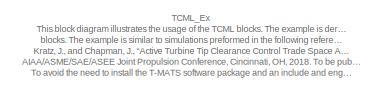
[diagram: root canvas - part 1/2, top left region]
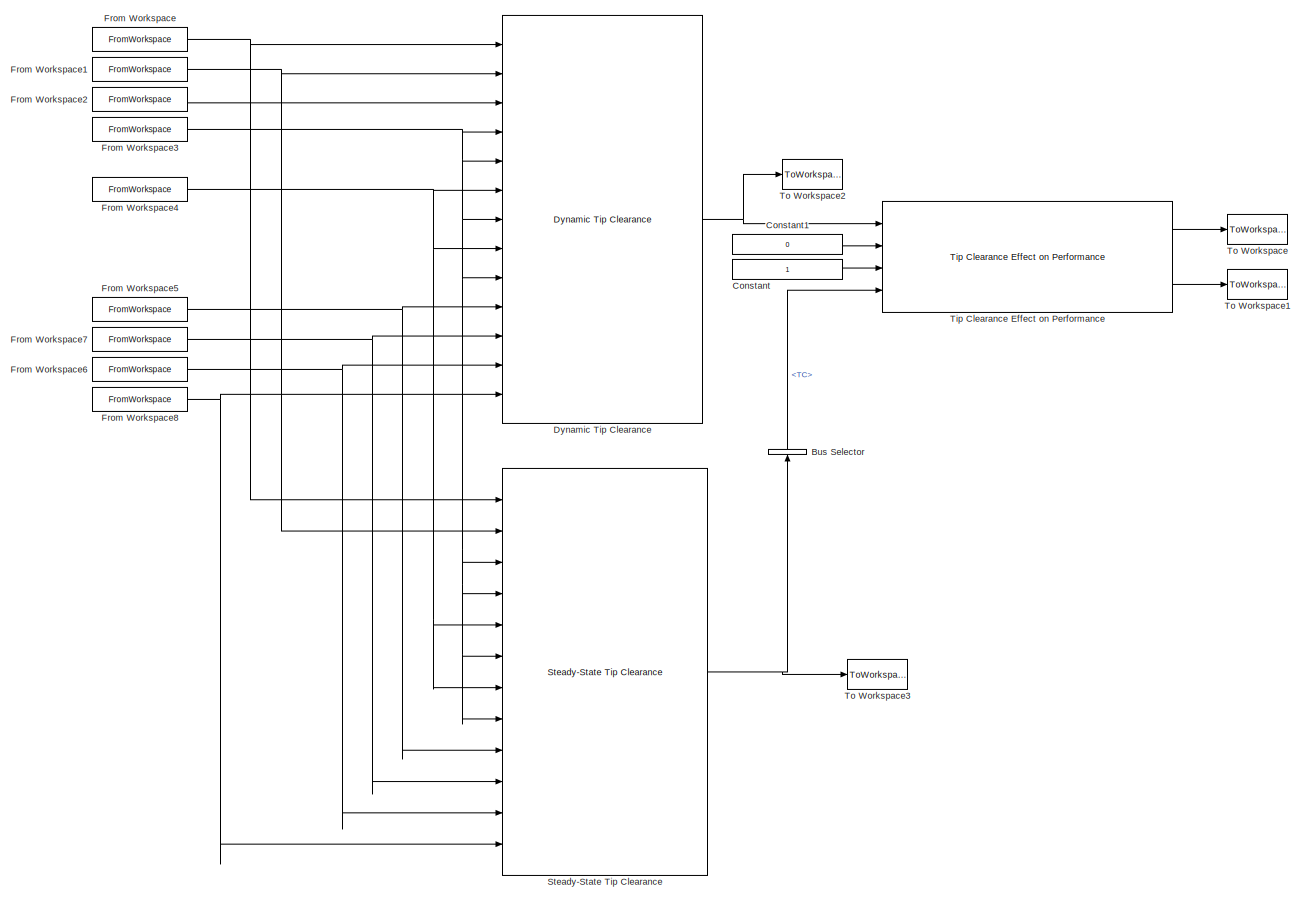
[diagram: root canvas - part 2/2, full width, middle band]
MODEL slx_3a5f094082b6
KIND model
CONFIG AbsTol = auto
CONFIG FixedStep = MWS.TC.Ext.dt
CONFIG MaxStep = auto
CONFIG MinStep = auto
CONFIG RelTol = 1e-3
CONFIG SampleTimeConstraint = Unconstrained
CONFIG Solver = ode4
CONFIG SolverMode = Auto
CONFIG SolverName = ode4
CONFIG StartTime = 0.0
CONFIG StopTime = tsim
BLOCK [BusSelector] Bus Selector
  OutputSignals = TC
  Ports = [1, 1]
BLOCK [Constant] Constant
BLOCK [Constant] Constant1
  Value = 0
BLOCK [Reference] Dynamic Tip Clearance  REF=lib_TCML/Dynamic Tip Clearance
  A_Blade_M = MWS.TC.Blade.A
  Cp_Blade_Data_M = MWS.TC.Blade.Cp_Data
  Cp_Blade_M = 4.5
  Cp_Case_Data_M = MWS.TC.Case.Cp_Data
  Cp_Case_M = 4.5
  Cp_Rotor_Data_M = MWS.TC.Rotor.Cp_Data
  Cp_Rotor_M = 4.5
  Cp_TempDependence_Blade_M = on
  Cp_TempDependence_Case_M = on
  Cp_TempDependence_Rotor_M = on
  E_Blade_Data_M = MWS.TC.Blade.E_Data
  E_Blade_M = 3974400000
  E_Rotor_Data_M = MWS.TC.Rotor.E_Data
  E_Rotor_M = 3974400000
  E_TempDependence_Blade_M = on
  E_TempDependence_Rotor_M = on
  L_Blade_M = MWS.TC.Blade.L0
  L_Shroud_M = MWS.TC.L_Shroud
  Ports = [13, 1]
  Ri_Case_M = MWS.TC.Case.Ri
  Ro_Rotor_M = MWS.TC.Rotor.Ro
  SourceBlock = lib_TCML/Dynamic Tip Clearance
  SourceType = TCML - Dynamic Tip Clearance Library Block
  T0_Blade_M = MWS.TC.Blade.T0
  T0_Case_M = MWS.TC.Case.T0
  T0_Core_M = MWS.TC.FC.T0_Core
  T0_Rotor_M = MWS.TC.Rotor.T0
  TCp_Blade_Data_M = MWS.TC.Blade.TCp_Data
  TCp_Case_Data_M = MWS.TC.Case.TCp_Data
  TCp_Rotor_Data_M = MWS.TC.Rotor.TCp_Data
  TE_Blade_Data_M = MWS.TC.Blade.TE_Data
  TE_Rotor_Data_M = MWS.TC.Rotor.TE_Data
  Talpha_Blade_Data_M = MWS.TC.Blade.Talpha_Data
  Talpha_Case_Data_M = MWS.TC.Case.Talpha_Data
  Talpha_Rotor_Data_M = MWS.TC.Rotor.Talpha_Data
  Tc_Blade_Data_M = [0 10]
  Tc_Case_In_Data_M = [0 10]
  Tc_Case_Out_Data_M = [0 10]
  Tc_Rotor_Back_Data_M = [0 10]
  Tc_Rotor_Front_Data_M = [0 10]
  Tcool0_Blade_M = MWS.TC.FC.Tcool0_Blade
  Tcool0_Case_In_M = MWS.TC.FC.Tcool0_Case_In
  Tcool0_Case_Out_M = MWS.TC.FC.Tcool0_Case_Out
  Tcool0_Rotor_Back_M = MWS.TC.FC.Tcool0_Rotor_Back
  Tcool0_Rotor_Front_M = MWS.TC.FC.Tcool0_Rotor_Front
  Tdes_Blade_M = MWS.TC.Blade.Tdes
  Tdes_Case_In_M = MWS.TC.Case.Tdes_in
  Tdes_Case_Out_M = MWS.TC.Case.Tdes_out
  Tdes_Rotor_Back_M = MWS.TC.Rotor.Tdes_back
  Tdes_Rotor_Front_M = MWS.TC.Rotor.Tdes_front
  Tk_Case_Data_M = MWS.TC.Case.Tk_Data
  Tk_Rotor_Data_M = MWS.TC.Rotor.Tk_Data
  Tv_Rotor_Data_M = MWS.TC.Rotor.Tv_Data
  W0_Core_M = MWS.TC.FC.W0_Core
  W_Case_M = MWS.TC.Case.W
  W_Rotor_M = MWS.TC.Rotor.W
  Wc_Blade_Data_M = [0 100]
  Wc_Case_In_Data_M = [0 100]
  Wc_Case_Out_Data_M = [0 100]
  Wc_Rotor_Back_Data_M = [0 100]
  Wc_Rotor_Front_Data_M = [0 100]
  Wcool0_Case_In_M = MWS.TC.FC.Wcool0_Case_In
  Wcool0_Case_Out_M = MWS.TC.FC.Wcool0_Case_Out
  Wcool0_Case_Out_Nom_M = MWS.TC.FC.Wcool0_Case_Out_Nom
  Wcool0_Rotor_Back_M = MWS.TC.FC.Wcool0_Rotor_Back
  Wcool0_Rotor_Front_M = MWS.TC.FC.Wcool0_Rotor_Front
  Wdes_Blade_M = MWS.TC.Blade.Wdes
  Wdes_Case_In_M = MWS.TC.Case.Wdes_in
  Wdes_Case_Out_M = MWS.TC.Case.Wdes_out
  Wdes_Rotor_Back_M = MWS.TC.Rotor.Wdes_back
  Wdes_Rotor_Front_M = MWS.TC.Rotor.Wdes_front
  alpha_Blade_Data_M = MWS.TC.Blade.alpha_Data
  alpha_Blade_M = 0.000008
  alpha_Case_Data_M = MWS.TC.Case.alpha_Data
  alpha_Case_M = 0.000008
  alpha_Rotor_Data_M = MWS.TC.Rotor.alpha_Data
  alpha_Rotor_M = 0.000008
  alpha_TempDependence_Blade_M = on
  alpha_TempDependence_Case_M = on
  alpha_TempDependence_Rotor_M = on
  dt_Blade_M = MWS.TC.Blade.dt
  dt_Case_M = MWS.TC.Case.dt
  dt_M = MWS.TC.Ext.dt
  dt_Rotor_M = MWS.TC.Rotor.dt
  eta_Blade_M = MWS.TC.Blade.eta
  h_Blade_Data_M = [0.03 0.03; 0.03 0.03]
  h_Blade_M = 0.03
  h_Case_In_Data_M = [0.004 0.004; 0.004 0.004]
  h_Case_In_M = 0.004
  h_Case_Out_Data_M = [0.003 0.003; 0.003 0.003]
  h_Case_Out_M = 0.004
  h_Const_Blade_M = off
  h_Const_Case_In_M = off
  h_Const_Case_Out_M = off
  h_Const_Rotor_Back_M = off
  h_Const_Rotor_Front_M = off
  h_Data_Blade_M = off
  h_Data_Case_In_M = off
  h_Data_Case_Out_M = off
  h_Data_Rotor_Back_M = off
  h_Data_Rotor_Front_M = off
  h_Eqn_Blade_M = on
  h_Eqn_Case_In_M = on
  h_Eqn_Case_Out_M = on
  h_Eqn_Rotor_Back_M = on
  h_Eqn_Rotor_Front_M = on
  h_Rotor_Back_Data_M = [0.003 0.003; 0.003 0.003]
  h_Rotor_Back_M = 0.03
  h_Rotor_Front_Data_M = [0.003 0.003; 0.003 0.003]
  h_Rotor_Front_M = 0.03
  hcoeff_Blade_M = MWS.TC.Blade.hcoeff
  hcoeff_Case_In_M = MWS.TC.Case.hcoeff_in
  hcoeff_Case_Out_M = MWS.TC.Case.hcoeff_out
  hcoeff_Rotor_Back_M = MWS.TC.Rotor.hcoeff_back
  hcoeff_Rotor_Front_M = MWS.TC.Rotor.hcoeff_front
  k_Case_Data_M = MWS.TC.Case.k_Data
  k_Case_M = 0.0015
  k_Rotor_Data_M = MWS.TC.Rotor.k_Data
  k_Rotor_M = 0.0015
  k_TempDependence_Case_M = on
  k_TempDependence_Rotor_M = on
  m_Blade_M = MWS.TC.Blade.m
  n_Case_M = MWS.TC.Case.n
  n_Rotor_M = MWS.TC.Rotor.n
  rho_Blade_M = MWS.TC.Blade.rho
  rho_Case_M = MWS.TC.Case.rho
  rho_Rotor_M = MWS.TC.Rotor.rho
  v_Rotor_Data_M = MWS.TC.Rotor.v_Data
  v_Rotor_M = 0.3
  v_TempDependence_Rotor_M = on
BLOCK [FromWorkspace] From Workspace
  SampleTime = 0
  VariableName = Nmech
  ZeroCross = on
BLOCK [FromWorkspace] From Workspace1
  SampleTime = 0
  VariableName = T4
  ZeroCross = on
BLOCK [FromWorkspace] From Workspace2
  SampleTime = 0
  VariableName = W4
  ZeroCross = on
BLOCK [FromWorkspace] From Workspace3
  SampleTime = 0
  VariableName = T3
  ZeroCross = on
BLOCK [FromWorkspace] From Workspace4
  SampleTime = 0
  VariableName = Wrot
  ZeroCross = on
BLOCK [FromWorkspace] From Workspace5
  SampleTime = 0
  VariableName = Wcase_in
  ZeroCross = on
BLOCK [FromWorkspace] From Workspace6
  SampleTime = 0
  VariableName = Wcase_out
  ZeroCross = on
BLOCK [FromWorkspace] From Workspace7
  SampleTime = 0
  VariableName = T13
  ZeroCross = on
BLOCK [FromWorkspace] From Workspace8
  SampleTime = 0
  VariableName = Wcase_out_nom
  ZeroCross = on
BLOCK [Reference] Steady-State Tip Clearance  REF=lib_TCML/Steady-State Tip Clearance
  E_Blade_Data_M = MWS.TC.Blade.E_Data
  E_Blade_M = 3974400000
  E_Rotor_Data_M = MWS.TC.Rotor.E_Data
  E_Rotor_M = 3974400000
  E_TempDependence_Blade_M = on
  E_TempDependence_Rotor_M = on
  L_Blade_M = MWS.TC.Blade.L0
  L_Shroud_M = MWS.TC.L_Shroud
  Ports = [12, 1]
  Ri_Case_M = MWS.TC.Case.Ri
  Ro_Rotor_M = MWS.TC.Rotor.Ro
  SourceBlock = lib_TCML/Steady-State Tip Clearance
  SourceType = TCML - Steady-State Tip Clearance Library Block
  T0_Blade_M = MWS.TC.Blade.T0
  T0_Case_M = MWS.TC.Case.T0
  T0_Rotor_M = MWS.TC.Rotor.T0
  TE_Blade_Data_M = MWS.TC.Blade.TE_Data
  TE_Rotor_Data_M = MWS.TC.Rotor.TE_Data
  Talpha_Blade_Data_M = MWS.TC.Blade.Talpha_Data
  Talpha_Case_Data_M = MWS.TC.Case.Talpha_Data
  Talpha_Rotor_Data_M = MWS.TC.Rotor.Talpha_Data
  Tc_Blade_Data_M = [0 10]
  Tc_Case_In_Data_M = [1 10]
  Tc_Case_Out_Data_M = [0 10]
  Tc_Rotor_Back_Data_M = [0 10]
  Tc_Rotor_Front_Data_M = [0 10]
  Tdes_Blade_M = MWS.TC.Blade.Tdes
  Tdes_Case_In_M = MWS.TC.Case.Tdes_in
  Tdes_Case_Out_M = MWS.TC.Case.Tdes_out
  Tdes_Rotor_Back_M = MWS.TC.Rotor.Tdes_back
  Tdes_Rotor_Front_M = MWS.TC.Rotor.Tdes_front
  Tk_Case_Data_M = MWS.TC.Case.Tk_Data
  Tk_Rotor_Data_M = MWS.TC.Rotor.Tk_Data
  Tv_Rotor_Data_M = MWS.TC.Rotor.Tv_Data
  W_Case_M = MWS.TC.Case.W
  W_Rotor_M = MWS.TC.Rotor.W
  Wc_Blade_Data_M = [0 100]
  Wc_Case_In_Data_M = [0 100]
  Wc_Case_Out_Data_M = [0 100]
  Wc_Rotor_Back_Data_M = [0 100]
  Wc_Rotor_Front_Data_M = [0 100]
  Wdes_Blade_M = MWS.TC.Blade.Wdes
  Wdes_Case_In_M = MWS.TC.Case.Wdes_in
  Wdes_Case_Out_M = MWS.TC.Case.Wdes_out
  Wdes_Rotor_Back_M = MWS.TC.Rotor.Wdes_back
  Wdes_Rotor_Front_M = MWS.TC.Rotor.Wdes_front
  alpha_Blade_Data_M = MWS.TC.Blade.alpha_Data
  alpha_Blade_M = 0.000008
  alpha_Case_Data_M = MWS.TC.Case.alpha_Data
  alpha_Case_M = 0.000008
  alpha_Rotor_Data_M = MWS.TC.Rotor.alpha_Data
  alpha_Rotor_M = 0.000008
  alpha_TempDependence_Blade_M = on
  alpha_TempDependence_Case_M = on
  alpha_TempDependence_Rotor_M = on
  eta_Blade_M = MWS.TC.Blade.eta
  h_Blade_Data_M = [0.03 0.03; 0.03 0.03]
  h_Blade_M = 0.03
  h_Case_In_Data_M = [0.02 0.02; 0.02 0.02]
  h_Case_In_M = 0.02
  h_Case_Out_Data_M = [0.01 0.01; 0.01 0.01]
  h_Case_Out_M = 0.01
  h_Const_Blade_M = off
  h_Const_Case_In_M = off
  h_Const_Case_Out_M = off
  h_Const_Rotor_Back_M = off
  h_Const_Rotor_Front_M = off
  h_Data_Blade_M = off
  h_Data_Case_In_M = off
  h_Data_Case_Out_M = off
  h_Data_Rotor_Back_M = off
  h_Data_Rotor_Front_M = off
  h_Eqn_Blade_M = on
  h_Eqn_Case_In_M = on
  h_Eqn_Case_Out_M = on
  h_Eqn_Rotor_Back_M = on
  h_Eqn_Rotor_Front_M = on
  h_Rotor_Back_Data_M = [0.003 0.003; 0.003 0.003]
  h_Rotor_Back_M = 0.03
  h_Rotor_Front_Data_M = [0.003 0.003; 0.003 0.003]
  h_Rotor_Front_M = 0.03
  hcoeff_Blade_M = MWS.TC.Blade.hcoeff
  hcoeff_Case_In_M = MWS.TC.Case.hcoeff_in
  hcoeff_Case_Out_M = MWS.TC.Case.hcoeff_out
  hcoeff_Rotor_Back_M = MWS.TC.Rotor.hcoeff_back
  hcoeff_Rotor_Front_M = MWS.TC.Rotor.hcoeff_front
  k_Case_Data_M = MWS.TC.Case.k_Data
  k_Case_M = 0.0015
  k_Rotor_Data_M = MWS.TC.Rotor.k_Data
  k_Rotor_M = 0.0015
  k_TempDependence_Case_M = on
  k_TempDependence_Rotor_M = on
  n_Case_M = MWS.TC.Case.n
  n_Rotor_M = MWS.TC.Rotor.n
  rho_Blade_M = MWS.TC.Blade.rho
  rho_Case_M = MWS.TC.Case.rho
  rho_Rotor_M = MWS.TC.Rotor.rho
  v_Rotor_Data_M = MWS.TC.Rotor.v_Data
  v_Rotor_M = 0.3
  v_TempDependence_Rotor_M = on
BLOCK [Reference] Tip Clearance Effect on Performance  REF=lib_TCML/Tip Clearance Effect on Performance
  DegGap_M = MWS.TC.DegGap
  L_Shroud_M = MWS.TC.L_Shroud
  NomConfig_M = on
  Ports = [4, 2]
  SourceBlock = lib_TCML/Tip Clearance Effect on Performance
  SourceType = TCML - Tip Clearance Effect on Performance Library Block
BLOCK [ToWorkspace] To Workspace
  FixptAsFi = on
  MaxDataPoints = inf
  Ports = [1]
  SampleTime = -1
  Save2DSignal = 3-D array (concatenate along third dimension)
  SaveFormat = Timeseries
  VariableName = TCact
BLOCK [ToWorkspace] To Workspace1
  FixptAsFi = on
  MaxDataPoints = inf
  Ports = [1]
  SampleTime = -1
  Save2DSignal = 3-D array (concatenate along third dimension)
  SaveFormat = Timeseries
  VariableName = effmod
BLOCK [ToWorkspace] To Workspace2
  FixptAsFi = on
  MaxDataPoints = inf
  Ports = [1]
  SampleTime = -1
  Save2DSignal = 3-D array (concatenate along third dimension)
  SaveFormat = Timeseries
  VariableName = Out_Dyn
BLOCK [ToWorkspace] To Workspace3
  FixptAsFi = on
  MaxDataPoints = inf
  Ports = [1]
  SampleTime = -1
  Save2DSignal = 3-D array (concatenate along third dimension)
  SaveFormat = Timeseries
  VariableName = Out_SS
ANNOTATION (root): TCML_Ex This block diagram illustrates the usage of the TCML blocks. The example is derived from a simulation of an advnaced geared turbofan engine using these blocks. The example is similar to simulations preformed in the following reference: Kratz, J., and Chapman, J., “Active Turbine Tip Clearance Control Trade Space Analysis of an Advanced Geared Turbofan Engine,” Proceedings of the 54nd AIAA/...<+1700ch>
LINE Bus Selector:1 -> Tip Clearance Effect on Performance:4
LINE Constant1:1 -> Tip Clearance Effect on Performance:2
LINE Constant:1 -> Tip Clearance Effect on Performance:3
NET Dynamic Tip Clearance:1 -> Tip Clearance Effect on Performance:1, To Workspace2:1
NET From Workspace1:1 -> Dynamic Tip Clearance:2, Steady-State Tip Clearance:2
LINE From Workspace2:1 -> Dynamic Tip Clearance:3
NET From Workspace3:1 -> Dynamic Tip Clearance:4, Dynamic Tip Clearance:5, Dynamic Tip Clearance:7, Dynamic Tip Clearance:9, Steady-State Tip Clearance:3, Steady-State Tip Clearance:4, Steady-State Tip Clearance:6, Steady-State Tip Clearance:8
NET From Workspace4:1 -> Dynamic Tip Clearance:6, Dynamic Tip Clearance:8, Steady-State Tip Clearance:5, Steady-State Tip Clearance:7
NET From Workspace5:1 -> Dynamic Tip Clearance:10, Steady-State Tip Clearance:9
NET From Workspace6:1 -> Dynamic Tip Clearance:12, Steady-State Tip Clearance:11
NET From Workspace7:1 -> Dynamic Tip Clearance:11, Steady-State Tip Clearance:10
NET From Workspace8:1 -> Dynamic Tip Clearance:13, Steady-State Tip Clearance:12
NET From Workspace:1 -> Dynamic Tip Clearance:1, Steady-State Tip Clearance:1
NET Steady-State Tip Clearance:1 -> Bus Selector:1, To Workspace3:1
LINE Tip Clearance Effect on Performance:1 -> To Workspace:1
LINE Tip Clearance Effect on Performance:2 -> To Workspace1:1
note: NET lines group one-source signal fan-out (src -> all destinations, sorted); 1:1 wires keep LINE
